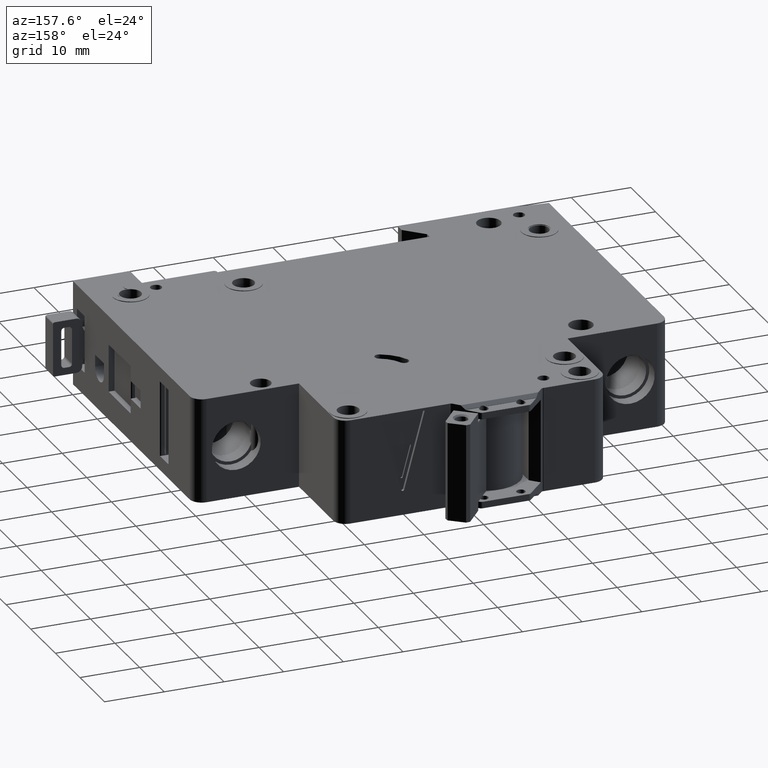
[diagram: clean part render]
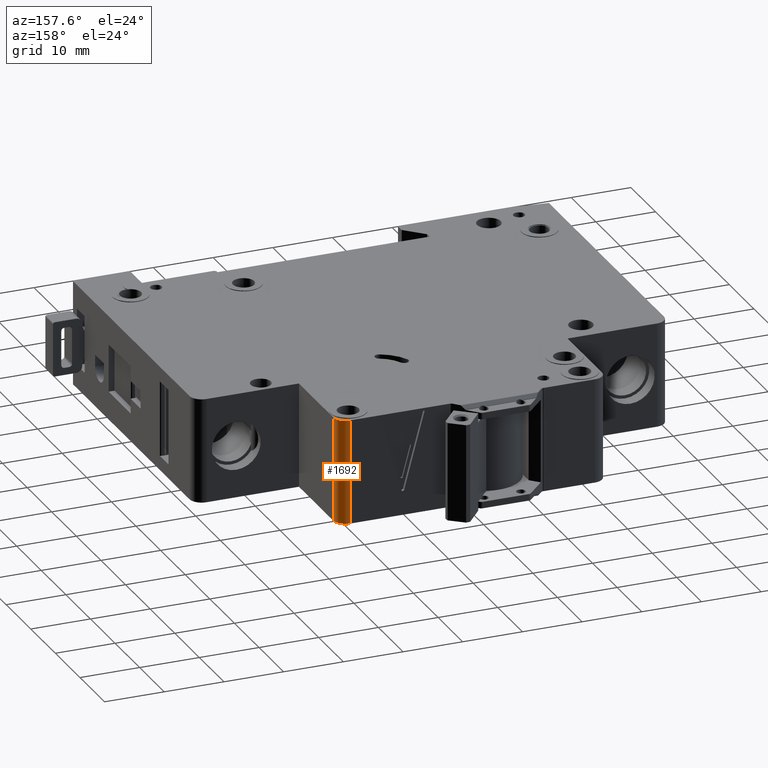
[diagram: same view with one face highlighted and labeled with its STEP entity id]
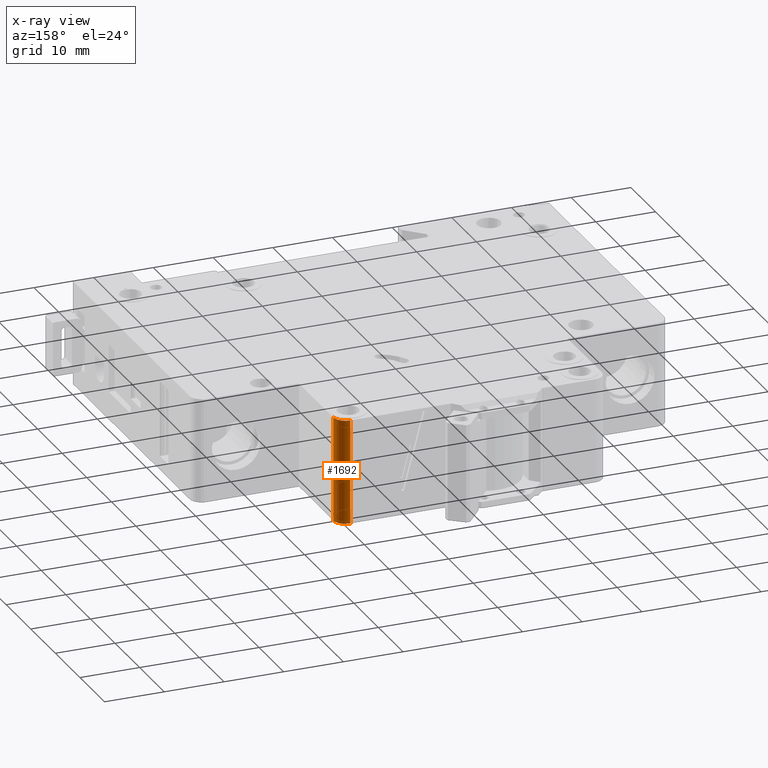
[diagram: x-ray of the same camera — body ghosted, the highlighted face saturated]
A machine part, auxiliary view. The second image highlights one B-rep face of the part: STEP entity #1692.
The next image is the same camera in x-ray: the body ghosted, the highlighted face saturated — about 0% of this face is hidden behind the body in this view.
In plain terms, the highlighted cylindrical surface (edge-blend (fillet) strip) has radius 2 mm, axis along (-0, -0, -1).
Its self-contained STEP definition (entity closure, byte-faithful):
#308 = CARTESIAN_POINT ( 'NONE',  ( 62.49999999999850100, 63.50000000000330400, 8.750000000000000000 ) ) ;
#357 = CARTESIAN_POINT ( 'NONE',  ( 62.49999999999850100, 63.50000000000330400, 8.750000000000000000 ) ) ;
#557 = VERTEX_POINT ( 'NONE', #3893 ) ;
#675 = FACE_OUTER_BOUND ( 'NONE', #14769, .T. ) ;
#1133 = CIRCLE ( 'NONE', #12823, 1.999999999999994900 ) ;
#1187 = VECTOR ( 'NONE', #16628, 1000.000000000000000 ) ;
#1337 = CARTESIAN_POINT ( 'NONE',  ( 60.49999999999850100, 63.50000000000329000, -8.750000000000000000 ) ) ;
#1692 = ADVANCED_FACE ( 'NONE', ( #675 ), #3807, .T. ) ;
#1788 = VECTOR ( 'NONE', #13414, 1000.000000000000000 ) ;
#2212 = LINE ( 'NONE', #308, #1788 ) ;
#2218 = DIRECTION ( 'NONE',  ( -1.000000000000000000, 0.0000000000000000000, 0.0000000000000000000 ) ) ;
#2693 = DIRECTION ( 'NONE',  ( 1.000000000000000000, 0.0000000000000000000, 0.0000000000000000000 ) ) ;
#3353 = VERTEX_POINT ( 'NONE', #10603 ) ;
#3807 = CYLINDRICAL_SURFACE ( 'NONE', #13575, 1.999999999999994900 ) ;
#3893 = CARTESIAN_POINT ( 'NONE',  ( 60.49999999999850100, 65.50000000000328300, -8.750000000000000000 ) ) ;
#4294 = AXIS2_PLACEMENT_3D ( 'NONE', #1337, #10572, #2693 ) ;
#4723 = ORIENTED_EDGE ( 'NONE', *, *, #15780, .F. ) ;
#5381 = DIRECTION ( 'NONE',  ( -0.0000000000000000000, 0.0000000000000000000, 1.000000000000000000 ) ) ;
#5850 = ORIENTED_EDGE ( 'NONE', *, *, #10112, .F. ) ;
#6472 = CARTESIAN_POINT ( 'NONE',  ( 60.49999999999850100, 65.50000000000328300, 8.750000000000000000 ) ) ;
#9588 = ORIENTED_EDGE ( 'NONE', *, *, #13860, .T. ) ;
#10112 = EDGE_CURVE ( 'NONE', #3353, #557, #11669, .T. ) ;
#10572 = DIRECTION ( 'NONE',  ( -0.0000000000000000000, 0.0000000000000000000, 1.000000000000000000 ) ) ;
#10603 = CARTESIAN_POINT ( 'NONE',  ( 60.49999999999850100, 65.50000000000328300, 8.750000000000000000 ) ) ;
#10708 = CARTESIAN_POINT ( 'NONE',  ( 62.49999999999850100, 63.50000000000330400, -8.750000000000000000 ) ) ;
#11669 = LINE ( 'NONE', #6472, #1187 ) ;
#11835 = CIRCLE ( 'NONE', #4294, 1.999999999999994900 ) ;
#12695 = CARTESIAN_POINT ( 'NONE',  ( 60.49999999999850100, 63.50000000000329000, 8.750000000000000000 ) ) ;
#12823 = AXIS2_PLACEMENT_3D ( 'NONE', #13115, #5381, #14379 ) ;
#13115 = CARTESIAN_POINT ( 'NONE',  ( 60.49999999999850100, 63.50000000000329000, 8.750000000000000000 ) ) ;
#13414 = DIRECTION ( 'NONE',  ( -0.0000000000000000000, -0.0000000000000000000, -1.000000000000000000 ) ) ;
#13575 = AXIS2_PLACEMENT_3D ( 'NONE', #12695, #15108, #2218 ) ;
#13860 = EDGE_CURVE ( 'NONE', #13895, #14816, #2212, .T. ) ;
#13895 = VERTEX_POINT ( 'NONE', #357 ) ;
#14328 = EDGE_CURVE ( 'NONE', #14816, #557, #11835, .T. ) ;
#14379 = DIRECTION ( 'NONE',  ( 1.000000000000000000, 0.0000000000000000000, 0.0000000000000000000 ) ) ;
#14769 = EDGE_LOOP ( 'NONE', ( #16506, #5850, #4723, #9588 ) ) ;
#14816 = VERTEX_POINT ( 'NONE', #10708 ) ;
#15108 = DIRECTION ( 'NONE',  ( -0.0000000000000000000, -0.0000000000000000000, -1.000000000000000000 ) ) ;
#15780 = EDGE_CURVE ( 'NONE', #13895, #3353, #1133, .T. ) ;
#16506 = ORIENTED_EDGE ( 'NONE', *, *, #14328, .T. ) ;
#16628 = DIRECTION ( 'NONE',  ( -0.0000000000000000000, -0.0000000000000000000, -1.000000000000000000 ) ) ;